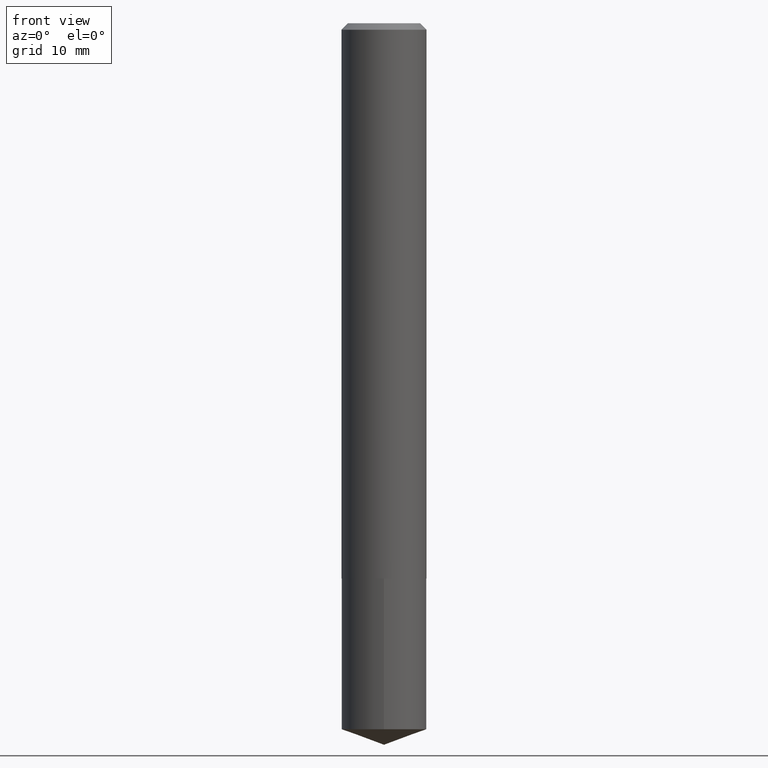
[diagram: clean part render]
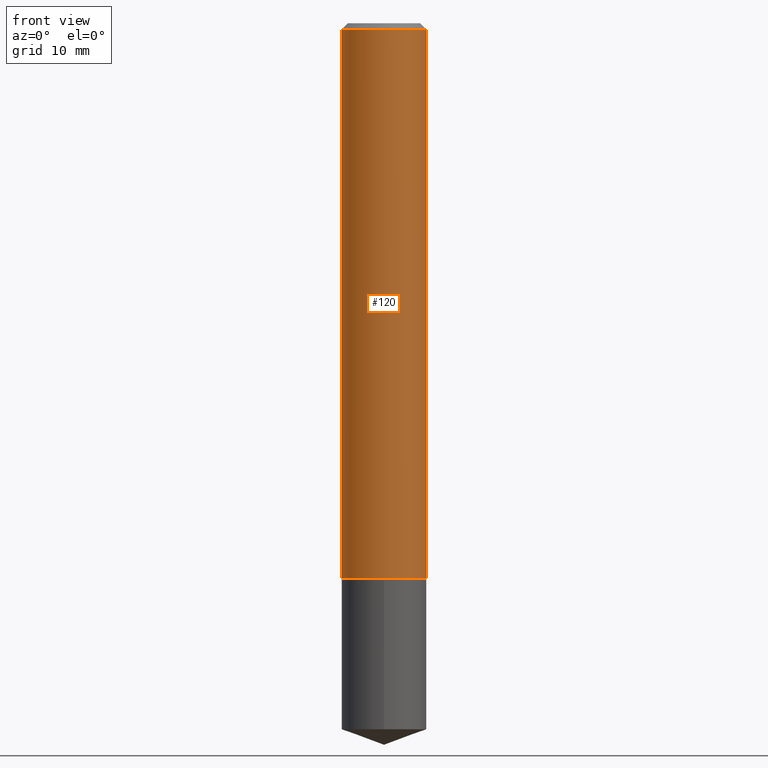
[diagram: same view with one face highlighted and labeled with its STEP entity id]
A machine part, front view. The second image highlights one B-rep face of the part: STEP entity #120.
In plain terms, the highlighted cylindrical surface (partial cylindrical patch) has radius 5.2502 mm, axis along (-0, 0, 1).
Its self-contained STEP definition (entity closure, byte-faithful):
#2 = ORIENTED_EDGE ( 'NONE', *, *, #63, .F. ) ;
#5 = VERTEX_POINT ( 'NONE', #213 ) ;
#31 = EDGE_CURVE ( 'NONE', #235, #5, #341, .T. ) ;
#34 = VERTEX_POINT ( 'NONE', #156 ) ;
#43 = CARTESIAN_POINT ( 'NONE',  ( 0.000000000000000000, 0.000000000000000000, 0.000000000000000000 ) ) ;
#63 = EDGE_CURVE ( 'NONE', #189, #5, #122, .T. ) ;
#75 = ORIENTED_EDGE ( 'NONE', *, *, #199, .T. ) ;
#100 = EDGE_LOOP ( 'NONE', ( #207, #75, #296, #2 ) ) ;
#104 = DIRECTION ( 'NONE',  ( 1.000000000000000000, -6.982962677686265133E-15, 0.000000000000000000 ) ) ;
#107 = DIRECTION ( 'NONE',  ( -2.445468806185136597E-29, 3.491481338843145583E-15, 1.000000000000000000 ) ) ;
#113 = LINE ( 'NONE', #168, #263 ) ;
#120 = ADVANCED_FACE ( 'NONE', ( #350 ), #140, .T. ) ;
#122 = CIRCLE ( 'NONE', #317, 0.2067000000000000226 ) ;
#123 = AXIS2_PLACEMENT_3D ( 'NONE', #194, #107, #250 ) ;
#131 = CARTESIAN_POINT ( 'NONE',  ( 7.642090019328607041E-31, -1.091087918388490883E-16, -0.03125000000000022898 ) ) ;
#140 = CYLINDRICAL_SURFACE ( 'NONE', #232, 0.2067000000000001336 ) ;
#143 = CARTESIAN_POINT ( 'NONE',  ( 0.2067000000000003279, -1.085745951940052607E-14, -2.696299999999999475 ) ) ;
#156 = CARTESIAN_POINT ( 'NONE',  ( -0.2067000000000003279, -7.945389299106642284E-15, -2.696299999999999475 ) ) ;
#168 = CARTESIAN_POINT ( 'NONE',  ( -0.2067000000000001336, 1.468691834816128034E-15, -1.016743883155689846E-29 ) ) ;
#189 = VERTEX_POINT ( 'NONE', #345 ) ;
#194 = CARTESIAN_POINT ( 'NONE',  ( 6.593717542116981856E-29, -9.414081133922771698E-15, -2.696299999999999475 ) ) ;
#199 = EDGE_CURVE ( 'NONE', #34, #235, #337, .T. ) ;
#207 = ORIENTED_EDGE ( 'NONE', *, *, #373, .F. ) ;
#213 = CARTESIAN_POINT ( 'NONE',  ( 0.2067000000000000226, -1.552487177316600316E-15, -0.03125000000000022898 ) ) ;
#232 = AXIS2_PLACEMENT_3D ( 'NONE', #43, #352, #375 ) ;
#235 = VERTEX_POINT ( 'NONE', #143 ) ;
#246 = CARTESIAN_POINT ( 'NONE',  ( 0.2067000000000001336, -1.443378385477752202E-15, 1.007905739557020761E-29 ) ) ;
#250 = DIRECTION ( 'NONE',  ( 1.000000000000000000, -6.982962677686269077E-15, 0.000000000000000000 ) ) ;
#258 = DIRECTION ( 'NONE',  ( -2.445468806185136877E-29, 3.491481338843145188E-15, 1.000000000000000000 ) ) ;
#263 = VECTOR ( 'NONE', #258, 39.37007874015748143 ) ;
#276 = DIRECTION ( 'NONE',  ( -2.445468806185136597E-29, 3.491481338843145583E-15, 1.000000000000000000 ) ) ;
#278 = DIRECTION ( 'NONE',  ( -2.445468806185136877E-29, 3.491481338843145188E-15, 1.000000000000000000 ) ) ;
#294 = VECTOR ( 'NONE', #278, 39.37007874015748143 ) ;
#296 = ORIENTED_EDGE ( 'NONE', *, *, #31, .T. ) ;
#317 = AXIS2_PLACEMENT_3D ( 'NONE', #131, #276, #104 ) ;
#337 = CIRCLE ( 'NONE', #123, 0.2067000000000003279 ) ;
#341 = LINE ( 'NONE', #246, #294 ) ;
#345 = CARTESIAN_POINT ( 'NONE',  ( -0.2067000000000000226, -3.292903128064680985E-15, -0.03125000000000022898 ) ) ;
#350 = FACE_OUTER_BOUND ( 'NONE', #100, .T. ) ;
#352 = DIRECTION ( 'NONE',  ( -2.445468806185136597E-29, 3.491481338843145583E-15, 1.000000000000000000 ) ) ;
#373 = EDGE_CURVE ( 'NONE', #34, #189, #113, .T. ) ;
#375 = DIRECTION ( 'NONE',  ( 1.000000000000000000, -6.982962677686266711E-15, 4.876176775795936914E-29 ) ) ;